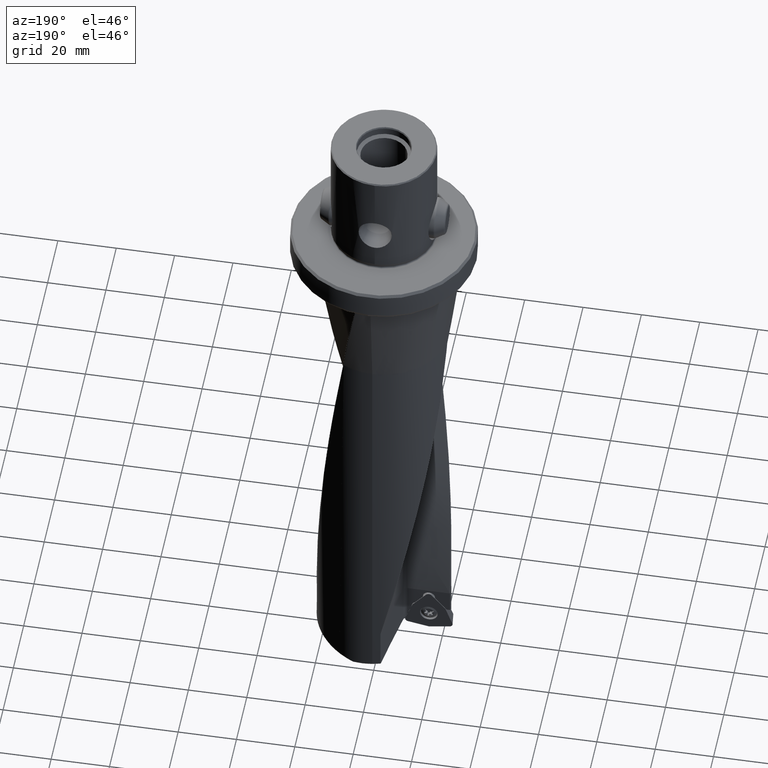
[diagram: clean part render]
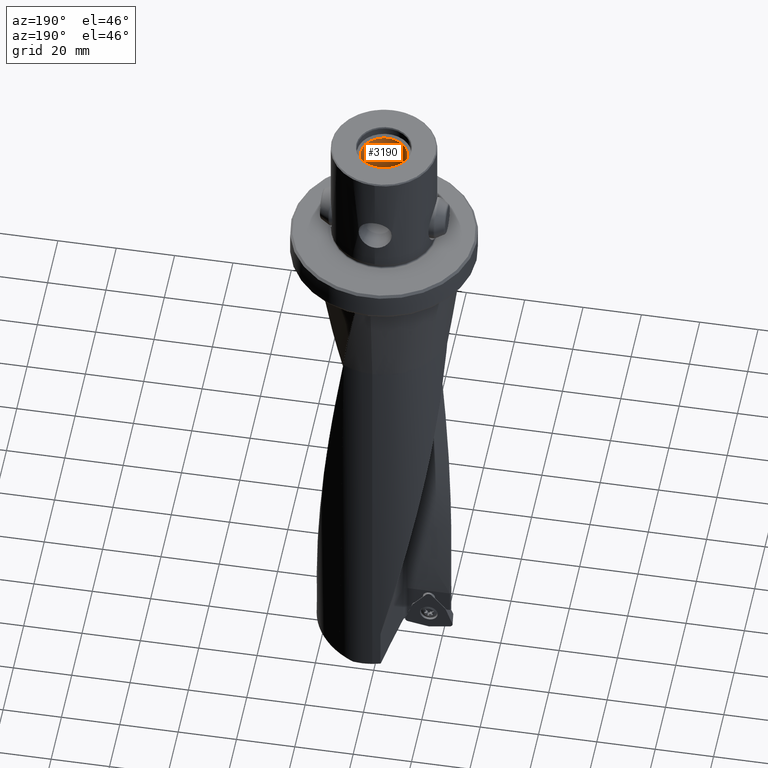
[diagram: same view with one face highlighted and labeled with its STEP entity id]
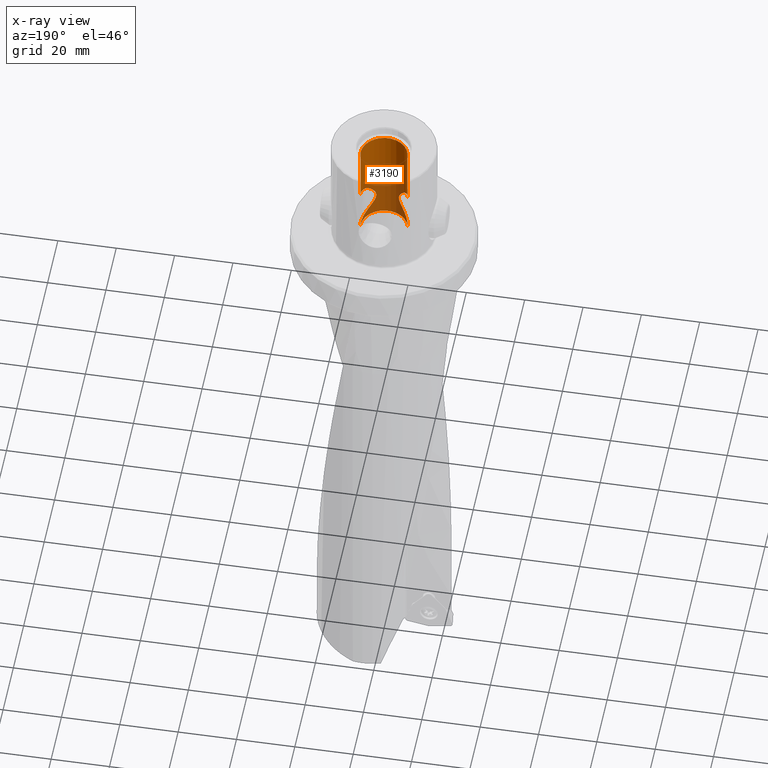
[diagram: x-ray of the same camera — body ghosted, the highlighted face saturated]
A machine part, auxiliary view. The second image highlights one B-rep face of the part: STEP entity #3190.
The next image is the same camera in x-ray: the body ghosted, the highlighted face saturated — about 41% of this face is hidden behind the body in this view.
In plain terms, the highlighted cylindrical surface (edge-blend (fillet) strip) has radius 8 mm, axis along (-0, -0, 1).
Its self-contained STEP definition (entity closure, byte-faithful):
#2066=EDGE_CURVE('NONE',#2708,#4250,#5760,.F.);
#2444=EDGE_CURVE('NONE',#2660,#2708,#6169,.T.);
#2458=EDGE_CURVE('NONE',#4446,#4674,#6183,.F.);
#2542=EDGE_CURVE('NONE',#4480,#3172,#6281,.T.);
#2660=VERTEX_POINT('NONE',#6415);
#2708=VERTEX_POINT('NONE',#6469);
#3172=VERTEX_POINT('NONE',#6984);
#3190=ADVANCED_FACE('NONE',(#7004),#7005,.F.);
#3508=VERTEX_POINT('NONE',#7364);
#3558=EDGE_CURVE('NONE',#2660,#3508,#7417,.T.);
#3772=EDGE_CURVE('NONE',#4446,#3172,#7657,.T.);
#4250=VERTEX_POINT('NONE',#8181);
#4446=VERTEX_POINT('NONE',#8397);
#4480=VERTEX_POINT('NONE',#8438);
#4660=EDGE_CURVE('NONE',#3508,#4674,#8640,.T.);
#4674=VERTEX_POINT('NONE',#8655);
#4716=EDGE_CURVE('NONE',#4250,#4480,#8703,.T.);
#5760=B_SPLINE_CURVE_WITH_KNOTS('',3,(#11417,#11418,#11419,#11420,#11421,#11422,#11423,#11424,#11425,#11426,#11427,#11428,#11429,#11430,#11431,#11432,#11433,#11434,#11435,#11436,#11437,#11438,#11439,#11440,#11441,#11442,#11443,#11444,#11445,#11446,#11447,#11448,#11449,#11450,#11451,#11452,#11453,#11454,#11455),.UNSPECIFIED.,.F.,.F.,(4,2,2,2,2,2,2,2,2,3,2,2,2,2,2,2,2,2,4),(-13.0261231570802,-11.6170748413418,-10.2080265256034,-8.798978209865,-7.3899298941266,-5.9808815783882,-4.48566118379115,-2.9904407891941,-1.49522039459705,0.0,1.49522039459705,2.9904407891941,4.48566118379115,5.9808815783882,7.38992989412659,8.79897820986499,10.2080265256034,11.6170748413418,13.0261231570802),.UNSPECIFIED.);
#6169=LINE('',#12711,#12712);
#6183=B_SPLINE_CURVE_WITH_KNOTS('',3,(#12731,#12732,#12733,#12734,#12735,#12736,#12737,#12738,#12739,#12740,#12741,#12742,#12743,#12744,#12745,#12746,#12747,#12748,#12749,#12750,#12751,#12752,#12753,#12754,#12755,#12756,#12757,#12758,#12759,#12760,#12761,#12762,#12763,#12764,#12765,#12766,#12767,#12768,#12769),.UNSPECIFIED.,.F.,.F.,(4,2,2,2,2,2,2,2,2,3,2,2,2,2,2,2,2,2,4),(-13.0261231570802,-11.6170748413418,-10.2080265256034,-8.79897820986499,-7.3899298941266,-5.9808815783882,-4.48566118379115,-2.9904407891941,-1.49522039459705,0.0,1.49522039459705,2.9904407891941,4.48566118379115,5.98088157838819,7.38992989412659,8.79897820986499,10.2080265256034,11.6170748413418,13.0261231570802),.UNSPECIFIED.);
#6281=CIRCLE('',#12972,8.0);
#6415=CARTESIAN_POINT('',(-8.0,2.00297677749317E-014,1.00000000000001));
#6469=CARTESIAN_POINT('',(-8.0,2.32036612146658E-014,2.00000000000004));
#6984=CARTESIAN_POINT('',(8.0,-1.90500826918738E-014,36.278312163513));
#7004=FACE_OUTER_BOUND('',#23782,.T.);
#7005=CYLINDRICAL_SURFACE('',#23783,8.0);
#7364=CARTESIAN_POINT('',(8.0,-1.90500826918738E-014,1.00000000000001));
#7417=CIRCLE('',#28577,8.0);
#7657=LINE('',#32026,#32027);
#8181=CARTESIAN_POINT('',(-8.0,1.99285032920216E-014,16.0));
#8397=CARTESIAN_POINT('',(8.0,-1.73749903353837E-014,16.0));
#8438=CARTESIAN_POINT('',(-8.0,2.15945933823482E-014,36.278312163513));
#8640=LINE('',#39399,#39400);
#8655=CARTESIAN_POINT('',(8.0,-1.99285032920216E-014,2.00000000000004));
#8703=LINE('',#40868,#40869);
#11417=CARTESIAN_POINT('',(-7.87429405329979,1.41261925590993,15.8559832874529));
#11418=CARTESIAN_POINT('',(-7.95788060027424,0.946686878016427,15.9519848414446));
#11419=CARTESIAN_POINT('',(-8.0,0.469682771912822,16.0));
#11420=CARTESIAN_POINT('',(-8.0,-0.469682771912778,16.0));
#11421=CARTESIAN_POINT('',(-7.95788060027424,-0.946686878016383,15.9519848414446));
#11422=CARTESIAN_POINT('',(-7.79070750632536,-1.87855163380339,15.7599817334612));
#11423=CARTESIAN_POINT('',(-7.66573577056592,-2.33344473878198,15.6160799623001));
#11424=CARTESIAN_POINT('',(-7.35047035995111,-3.19046270485156,15.2480735875523));
#11425=CARTESIAN_POINT('',(-7.15992269108928,-3.59363227200827,15.0236381898265));
#11426=CARTESIAN_POINT('',(-6.74134251891317,-4.32816206773418,14.5195491706396));
#11427=CARTESIAN_POINT('',(-6.51341901027052,-4.65959050102206,14.2399044355896));
#11428=CARTESIAN_POINT('',(-6.04241087484838,-5.2576493409891,13.6418455956226));
#11429=CARTESIAN_POINT('',(-5.78027369773602,-5.54264922853151,13.2987346134932));
#11430=CARTESIAN_POINT('',(-5.25299196402676,-6.04471668598791,12.5582973428522));
#11431=CARTESIAN_POINT('',(-4.98770755992333,-6.2620004532676,12.1612172823958));
#11432=CARTESIAN_POINT('',(-4.50503962216919,-6.61774142834711,11.32624561622));
#11433=CARTESIAN_POINT('',(-4.28769544564273,-6.75646986104506,10.888895747324));
#11434=CARTESIAN_POINT('',(-3.97082865492436,-6.94742665346324,9.97523070233682));
#11435=CARTESIAN_POINT('',(-3.87298334620744,-6.99999999999999,9.49840679819905));
#11436=CARTESIAN_POINT('',(-3.87298334620744,-6.99999999999999,9.00000000000003));
#11437=CARTESIAN_POINT('',(-3.87298334620744,-6.99999999999999,8.50159320180101));
#11438=CARTESIAN_POINT('',(-3.97082865492436,-6.94742665346324,8.02476929766324));
#11439=CARTESIAN_POINT('',(-4.28769544564273,-6.75646986104506,7.11110425267603));
#11440=CARTESIAN_POINT('',(-4.50503962216919,-6.61774142834711,6.67375438378003));
#11441=CARTESIAN_POINT('',(-4.98770755992332,-6.2620004532676,5.83878271760427));
#11442=CARTESIAN_POINT('',(-5.25299196402676,-6.04471668598791,5.44170265714783));
#11443=CARTESIAN_POINT('',(-5.78027369773602,-5.54264922853151,4.70126538650685));
#11444=CARTESIAN_POINT('',(-6.04241087484838,-5.25764934098911,4.3581544043775));
#11445=CARTESIAN_POINT('',(-6.51341901027052,-4.65959050102207,3.76009556441046));
#11446=CARTESIAN_POINT('',(-6.74134251891317,-4.32816206773418,3.48045082936047));
#11447=CARTESIAN_POINT('',(-7.15992269108928,-3.59363227200828,2.97636181017352));
#11448=CARTESIAN_POINT('',(-7.35047035995111,-3.19046270485157,2.75192641244781));
#11449=CARTESIAN_POINT('',(-7.66573577056592,-2.33344473878199,2.38392003769998));
#11450=CARTESIAN_POINT('',(-7.79070750632536,-1.8785516338034,2.2400182665389));
#11451=CARTESIAN_POINT('',(-7.95788060027424,-0.946686878016386,2.04801515855551));
#11452=CARTESIAN_POINT('',(-8.0,-0.469682771912781,2.00000000000004));
#11453=CARTESIAN_POINT('',(-8.0,0.469682771912817,2.00000000000004));
#11454=CARTESIAN_POINT('',(-7.95788060027424,0.946686878016421,2.04801515855551));
#11455=CARTESIAN_POINT('',(-7.87429405329979,1.41261925590993,2.1440167125472));
#12711=CARTESIAN_POINT('',(-8.0,2.00297677749317E-014,40.0));
#12712=VECTOR('',#46762,1000.0);
#12731=CARTESIAN_POINT('',(7.8742940532998,1.41261925590989,2.1440167125472));
#12732=CARTESIAN_POINT('',(7.95788060027424,0.946686878016384,2.04801515855551));
#12733=CARTESIAN_POINT('',(8.0,0.469682771912781,2.00000000000004));
#12734=CARTESIAN_POINT('',(8.0,-0.469682771912817,2.00000000000004));
#12735=CARTESIAN_POINT('',(7.95788060027424,-0.946686878016421,2.04801515855551));
#12736=CARTESIAN_POINT('',(7.79070750632535,-1.87855163380344,2.2400182665389));
#12737=CARTESIAN_POINT('',(7.66573577056591,-2.33344473878203,2.38392003769998));
#12738=CARTESIAN_POINT('',(7.35047035995109,-3.19046270485161,2.75192641244782));
#12739=CARTESIAN_POINT('',(7.15992269108926,-3.59363227200831,2.97636181017352));
#12740=CARTESIAN_POINT('',(6.74134251891315,-4.32816206773421,3.48045082936047));
#12741=CARTESIAN_POINT('',(6.51341901027049,-4.6595905010221,3.76009556441045));
#12742=CARTESIAN_POINT('',(6.04241087484835,-5.25764934098913,4.35815440437749));
#12743=CARTESIAN_POINT('',(5.78027369773599,-5.54264922853153,4.70126538650684));
#12744=CARTESIAN_POINT('',(5.25299196402673,-6.04471668598793,5.44170265714782));
#12745=CARTESIAN_POINT('',(4.9877075599233,-6.26200045326762,5.83878271760427));
#12746=CARTESIAN_POINT('',(4.50503962216916,-6.61774142834713,6.67375438378003));
#12747=CARTESIAN_POINT('',(4.28769544564269,-6.75646986104508,7.11110425267603));
#12748=CARTESIAN_POINT('',(3.97082865492433,-6.94742665346326,8.02476929766324));
#12749=CARTESIAN_POINT('',(3.87298334620741,-7.00000000000001,8.50159320180101));
#12750=CARTESIAN_POINT('',(3.87298334620741,-7.0,9.00000000000003));
#12751=CARTESIAN_POINT('',(3.87298334620741,-7.0,9.49840679819905));
#12752=CARTESIAN_POINT('',(3.97082865492433,-6.94742665346326,9.97523070233683));
#12753=CARTESIAN_POINT('',(4.2876954456427,-6.75646986104508,10.888895747324));
#12754=CARTESIAN_POINT('',(4.50503962216916,-6.61774142834713,11.32624561622));
#12755=CARTESIAN_POINT('',(4.9877075599233,-6.26200045326762,12.1612172823958));
#12756=CARTESIAN_POINT('',(5.25299196402674,-6.04471668598793,12.5582973428522));
#12757=CARTESIAN_POINT('',(5.78027369773599,-5.54264922853154,13.2987346134932));
#12758=CARTESIAN_POINT('',(6.04241087484835,-5.25764934098913,13.6418455956226));
#12759=CARTESIAN_POINT('',(6.51341901027049,-4.6595905010221,14.2399044355896));
#12760=CARTESIAN_POINT('',(6.74134251891315,-4.32816206773422,14.5195491706396));
#12761=CARTESIAN_POINT('',(7.15992269108926,-3.59363227200831,15.0236381898265));
#12762=CARTESIAN_POINT('',(7.35047035995109,-3.1904627048516,15.2480735875523));
#12763=CARTESIAN_POINT('',(7.66573577056591,-2.33344473878202,15.6160799623001));
#12764=CARTESIAN_POINT('',(7.79070750632535,-1.87855163380344,15.7599817334612));
#12765=CARTESIAN_POINT('',(7.95788060027424,-0.946686878016423,15.9519848414446));
#12766=CARTESIAN_POINT('',(8.0,-0.469682771912818,16.0));
#12767=CARTESIAN_POINT('',(8.0,0.46968277191278,16.0));
#12768=CARTESIAN_POINT('',(7.95788060027424,0.946686878016385,15.9519848414446));
#12769=CARTESIAN_POINT('',(7.8742940532998,1.41261925590989,15.8559832874529));
#12972=AXIS2_PLACEMENT_3D('',#46911,#46912,#46913);
#23782=EDGE_LOOP('',(#47822,#47823,#47824,#47825,#47826,#47827,#47828,#47829));
#23783=AXIS2_PLACEMENT_3D('',#47830,#47831,#47832);
#28577=AXIS2_PLACEMENT_3D('',#48275,#48276,#48277);
#32026=CARTESIAN_POINT('',(8.0,-1.90500826918738E-014,40.0));
#32027=VECTOR('',#48574,1000.0);
#39399=CARTESIAN_POINT('',(8.0,-1.90500826918738E-014,40.0));
#39400=VECTOR('',#49670,1000.0);
#40868=CARTESIAN_POINT('',(-8.0,2.00297677749317E-014,40.0));
#40869=VECTOR('',#49741,1000.0);
#46762=DIRECTION('',(0.0,0.0,1.0));
#46911=CARTESIAN_POINT('',(0.0,0.0,36.278312163513));
#46912=DIRECTION('',(0.0,-0.0,1.0));
#46913=DIRECTION('',(1.0,-2.38126033648423E-015,-0.0));
#47822=ORIENTED_EDGE('',*,*,#3558,.F.);
#47823=ORIENTED_EDGE('',*,*,#2444,.T.);
#47824=ORIENTED_EDGE('',*,*,#2066,.T.);
#47825=ORIENTED_EDGE('',*,*,#4716,.T.);
#47826=ORIENTED_EDGE('',*,*,#2542,.T.);
#47827=ORIENTED_EDGE('',*,*,#3772,.F.);
#47828=ORIENTED_EDGE('',*,*,#2458,.T.);
#47829=ORIENTED_EDGE('',*,*,#4660,.F.);
#47830=CARTESIAN_POINT('',(0.0,0.0,40.0));
#47831=DIRECTION('',(-0.0,-0.0,1.0));
#47832=DIRECTION('',(1.0,-2.38126033648423E-015,0.0));
#48275=CARTESIAN_POINT('',(0.0,0.0,1.00000000000001));
#48276=DIRECTION('',(0.0,-0.0,1.0));
#48277=DIRECTION('',(1.0,-2.38126033648423E-015,-0.0));
#48574=DIRECTION('',(0.0,0.0,1.0));
#49670=DIRECTION('',(0.0,0.0,1.0));
#49741=DIRECTION('',(0.0,0.0,1.0));